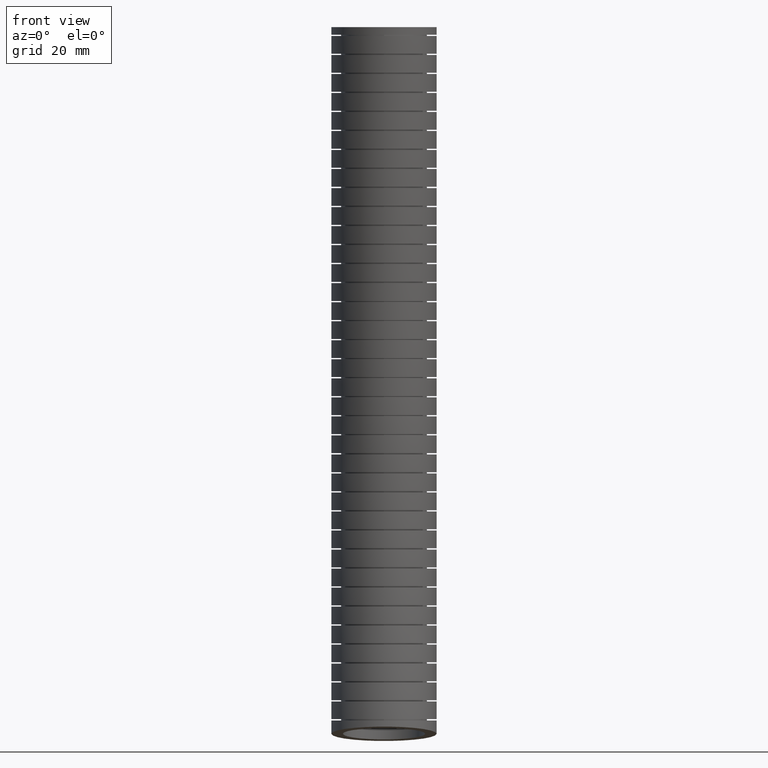
[diagram: clean part render]
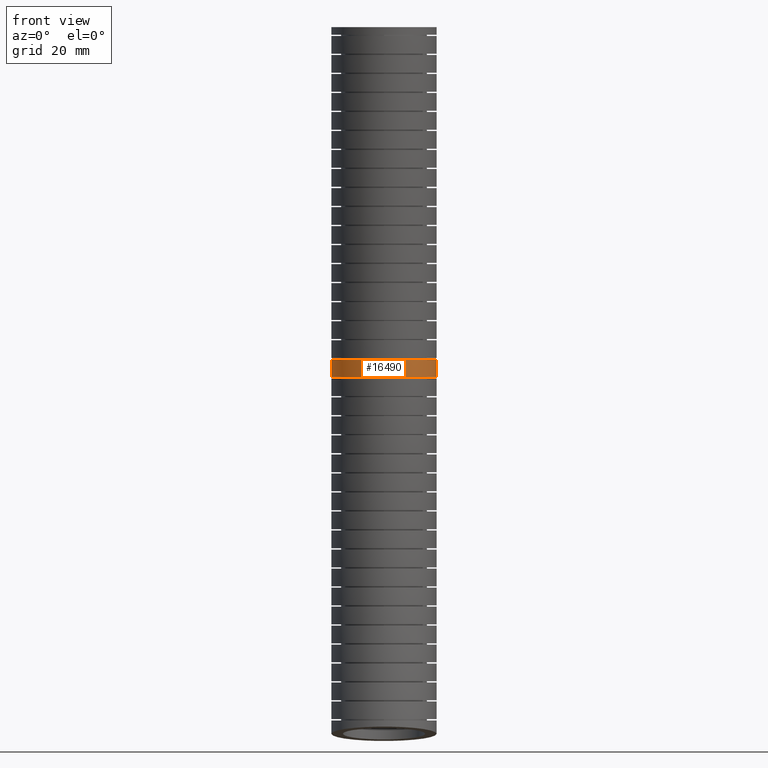
[diagram: same view with one face highlighted and labeled with its STEP entity id]
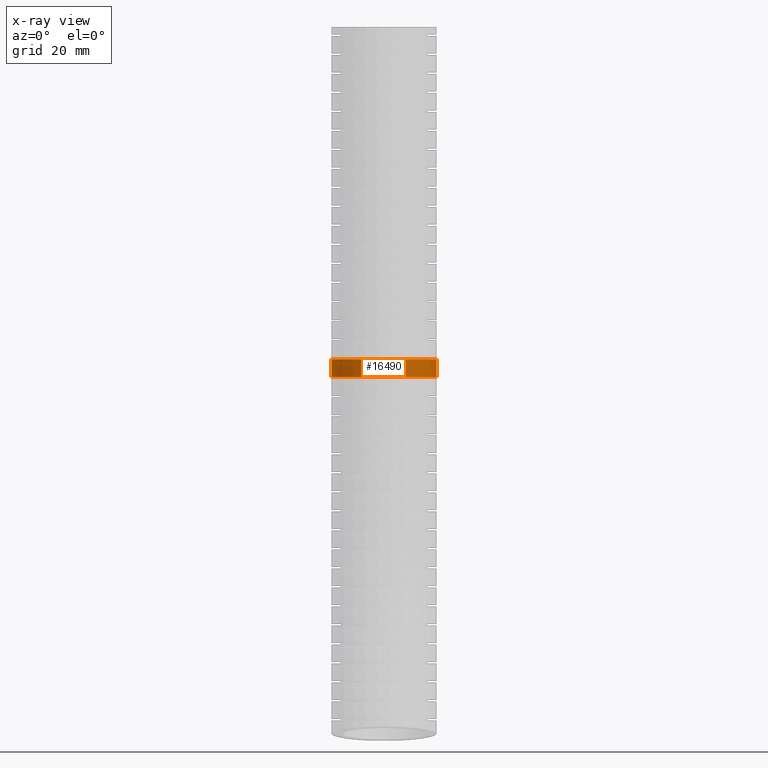
[diagram: x-ray of the same camera — body ghosted, the highlighted face saturated]
A machine part, front view. The second image highlights one B-rep face of the part: STEP entity #16490.
The next image is the same camera in x-ray: the body ghosted, the highlighted face saturated — about 0% of this face is hidden behind the body in this view.
In plain terms, the highlighted face is a freeform B-spline surface patch.
Its self-contained STEP definition (entity closure, byte-faithful):
#3568 = CARTESIAN_POINT ( 'NONE',  ( 0.3601688368391189900, -0.1194407579351454300, -2.618444686257095400 ) ) ;
#3570 = CARTESIAN_POINT ( 'NONE',  ( 0.3729247891442401500, -0.09561640822386305300, -2.618444686257095800 ) ) ;
#3571 = CARTESIAN_POINT ( 'NONE',  ( 0.3885592072056641100, -0.05794052314210737500, -2.618444686257097600 ) ) ;
#3709 = B_SPLINE_CURVE_WITH_KNOTS ( 'NONE', 3,
 ( #3726, #3725, #3724, #3723 ),
 .UNSPECIFIED., .F., .F.,
 ( 4, 4 ),
 ( 0.4693296114565723700, 0.4944473827982828200 ),
 .UNSPECIFIED. ) ;
#3710 = CARTESIAN_POINT ( 'NONE',  ( -0.4150000000000000900, 0.08968345054271666100, -2.758437796094407500 ) ) ;
#3711 = CARTESIAN_POINT ( 'NONE',  ( 0.4150000000000000900, 0.08968345053978009400, -2.758437795902524100 ) ) ;
#3723 = CARTESIAN_POINT ( 'NONE',  ( 0.4150000000000000900, 0.08968345053978009400, -2.758437795902524100 ) ) ;
#3724 = CARTESIAN_POINT ( 'NONE',  ( 0.4150000000000000400, 0.08932641115617297200, -2.711777060696217000 ) ) ;
#3725 = CARTESIAN_POINT ( 'NONE',  ( 0.4150000000000000400, 0.08888085908836913800, -2.665112628142432000 ) ) ;
#3726 = CARTESIAN_POINT ( 'NONE',  ( 0.4150000000000000900, 0.08835129075206960000, -2.618444686065264400 ) ) ;
#3740 = CARTESIAN_POINT ( 'NONE',  ( -0.1836578986645913700, -0.2831459562742090800, -2.758437796094408000 ) ) ;
#3741 = CARTESIAN_POINT ( 'NONE',  ( -0.2080285866802455700, -0.2701408848866131400, -2.758437796094406600 ) ) ;
#3742 = CARTESIAN_POINT ( 'NONE',  ( -0.2531033597253879400, -0.2400469451076659700, -2.758437796094408000 ) ) ;
#3743 = CARTESIAN_POINT ( 'NONE',  ( -0.2740103408833247700, -0.2229277358624604200, -2.758437796094408000 ) ) ;
#3744 = CARTESIAN_POINT ( 'NONE',  ( -0.3028952075132629300, -0.1941024368056295500, -2.758437796094407500 ) ) ;
#3745 = CARTESIAN_POINT ( 'NONE',  ( -0.3121429971595960400, -0.1839149737702739900, -2.758437796094407500 ) ) ;
#3746 = CARTESIAN_POINT ( 'NONE',  ( -0.3294176012613525600, -0.1628861385754488400, -2.758437796094407500 ) ) ;
#3747 = CARTESIAN_POINT ( 'NONE',  ( -0.3374872869322752000, -0.1520102725692707200, -2.758437796094405800 ) ) ;
#3748 = CARTESIAN_POINT ( 'NONE',  ( -0.3600287130539248600, -0.1183207557032729300, -2.758437796094406200 ) ) ;
#3749 = CARTESIAN_POINT ( 'NONE',  ( -0.3728668706419741600, -0.09441323788760044900, -2.758437796094408000 ) ) ;
#3750 = CARTESIAN_POINT ( 'NONE',  ( -0.3938541191073686700, -0.04383112582198386100, -2.758437796094408400 ) ) ;
#3751 = CARTESIAN_POINT ( 'NONE',  ( -0.4016961210579685400, -0.01791990375877386400, -2.758437796094408900 ) ) ;
#3752 = CARTESIAN_POINT ( 'NONE',  ( -0.4096317179589165100, 0.02184208971286200100, -2.758437796094408900 ) ) ;
#3753 = CARTESIAN_POINT ( 'NONE',  ( -0.4116343068152905100, 0.03524638230688231100, -2.758437796094410200 ) ) ;
#3754 = CARTESIAN_POINT ( 'NONE',  ( -0.4143227333589243300, 0.06236293154813406900, -2.758437796094409800 ) ) ;
#3755 = CARTESIAN_POINT ( 'NONE',  ( -0.4150000000000000900, 0.07609679407364426700, -2.758437796094407500 ) ) ;
#3756 = CARTESIAN_POINT ( 'NONE',  ( -0.4150000000000000900, 0.08968345054271666100, -2.758437796094407500 ) ) ;
#3757 = CARTESIAN_POINT ( 'NONE',  ( 0.4150000000000000900, 0.08835129075206960000, -2.618444686065264400 ) ) ;
#3758 = B_SPLINE_CURVE_WITH_KNOTS ( 'NONE', 3,
 ( #3756, #3755, #3754, #3753, #3752, #3751, #3750, #3749, #3748, #3747, #3746, #3745, #3744, #3743, #3742, #3741, #3740, #3811, #3810, #3809, #3808, #3807, #3806, #3805, #3804, #3803, #3802, #3801, #3800, #3799, #3798, #3797, #3796, #3795, #3794, #3793, #3792, #3791, #3790, #3789, #3788, #3786, #3785, #3784, #3783, #3782, #3781, #3780 ),
 .UNSPECIFIED., .F., .F.,
 ( 4, 2, 2, 2, 2, 2, 2, 2, 2, 2, 2, 1, 2, 2, 2, 2, 2, 2, 2, 2, 2, 2, 1, 2, 4 ),
 ( 0.03329562221631519900, 0.03433615321280619700, 0.03537668420929719600, 0.03745774620227920000, 0.03953880819526119800, 0.04057933919175219600, 0.04161987018824320200, 0.04370093218122519900, 0.04578199417420720400, 0.04786305616718920100, 0.04890358716368020700, 0.04994411816017120500, 0.05098464915666220400, 0.05202518015315320300, 0.05410624214613520000, 0.05514677314262619900, 0.05618730413911719700, 0.05826836613209920900, 0.05930889712859020700, 0.06034942812508120600, 0.06243049011806320300, 0.06347102111455420200, 0.06451155211104520100, 0.06555208310753621300, 0.06659261410402721200 ),
 .UNSPECIFIED. ) ;
#3759 = CARTESIAN_POINT ( 'NONE',  ( -0.4150000000000000900, 0.08835129075642331200, -2.618444686257095800 ) ) ;
#3764 = CARTESIAN_POINT ( 'NONE',  ( -0.4150000000000000900, 0.08968345054271666100, -2.758437796094407500 ) ) ;
#3765 = CARTESIAN_POINT ( 'NONE',  ( -0.4150000000000000900, 0.08932641115788386700, -2.711777060888098700 ) ) ;
#3766 = CARTESIAN_POINT ( 'NONE',  ( -0.4150000000000000900, 0.08888085909031627500, -2.665112628334301200 ) ) ;
#3767 = CARTESIAN_POINT ( 'NONE',  ( -0.4150000000000000900, 0.08835129075642331200, -2.618444686257095800 ) ) ;
#3770 = B_SPLINE_CURVE_WITH_KNOTS ( 'NONE', 3,
 ( #3767, #3766, #3765, #3764 ),
 .UNSPECIFIED., .F., .F.,
 ( 4, 4 ),
 ( 0.4693296114909928900, 0.4944473828327154400 ),
 .UNSPECIFIED. ) ;
#3772 = CARTESIAN_POINT ( 'NONE',  ( 0.3931997750061938000, -0.04498765426720918000, -2.618444686257096700 ) ) ;
#3773 = CARTESIAN_POINT ( 'NONE',  ( 0.4011063865392967000, -0.01892393673201044800, -2.618444686257096700 ) ) ;
#3774 = CARTESIAN_POINT ( 'NONE',  ( 0.4043944211845930100, -0.005778765187284149900, -2.618444686257096300 ) ) ;
#3775 = CARTESIAN_POINT ( 'NONE',  ( 0.4123072530145108800, 0.03398910125684666300, -2.618444686257097600 ) ) ;
#3776 = CARTESIAN_POINT ( 'NONE',  ( 0.4150000000000001500, 0.06094087398124278100, -2.618444686065264400 ) ) ;
#3777 = CARTESIAN_POINT ( 'NONE',  ( 0.4150000000000000900, 0.08835129075206960000, -2.618444686065264400 ) ) ;
#3778 = B_SPLINE_CURVE_WITH_KNOTS ( 'NONE', 3,
 ( #3777, #3776, #3775, #3774, #3773, #3772, #3571, #3570, #3568, #3852, #3851, #3850, #3849, #3848, #3847, #3846, #3845, #3844, #3843, #3842, #3841, #3840, #3839, #3838, #3837, #3836, #3835, #3834, #3833, #3832, #3831, #3830, #3829, #3828, #3827, #3826, #3825, #3824, #3823, #3822, #3821, #3820, #3819, #3818, #3817, #3816, #3815 ),
 .UNSPECIFIED., .F., .F.,
 ( 4, 2, 2, 2, 2, 2, 2, 2, 2, 1, 2, 2, 2, 2, 2, 2, 2, 2, 2, 2, 2, 2, 2, 4 ),
 ( 0.0000000000000000000, 0.002059020325271534000, 0.003088530487907301300, 0.004118040650543068100, 0.006177060975814600800, 0.007206571138450366800, 0.008236081301086131000, 0.01029510162635766600, 0.01132461178899343100, 0.01235412195162919500, 0.01338363211426496200, 0.01441314227690072700, 0.01647216260217225500, 0.01750167276480802200, 0.01853118292744378900, 0.02059020325271532200, 0.02161971341535108200, 0.02264922357798684900, 0.02470824390325837600, 0.02676726422852990200, 0.02779677439116566900, 0.02882628455380142900, 0.03088530487907296300, 0.03294432520434449600 ),
 .UNSPECIFIED. ) ;
#3780 = CARTESIAN_POINT ( 'NONE',  ( 0.4150000000000000900, 0.08968345053978009400, -2.758437795902524100 ) ) ;
#3781 = CARTESIAN_POINT ( 'NONE',  ( 0.4150000000000000900, 0.07598084488924568300, -2.758437795902523700 ) ) ;
#3782 = CARTESIAN_POINT ( 'NONE',  ( 0.4143156228152621900, 0.06226965711654058200, -2.758437796094405800 ) ) ;
#3783 = CARTESIAN_POINT ( 'NONE',  ( 0.4116285888042686700, 0.03521036602161239900, -2.758437796094407500 ) ) ;
#3784 = CARTESIAN_POINT ( 'NONE',  ( 0.4076280543686335900, 0.008435164013076389100, -2.758437796094405800 ) ) ;
#3785 = CARTESIAN_POINT ( 'NONE',  ( 0.4010505005118978900, -0.01778267000438736900, -2.758437796094408000 ) ) ;
#3786 = CARTESIAN_POINT ( 'NONE',  ( 0.3931719474316903700, -0.04371911874487751500, -2.758437796094408000 ) ) ;
#3788 = CARTESIAN_POINT ( 'NONE',  ( 0.3885646856981513400, -0.05658836245891620700, -2.758437796094405300 ) ) ;
#3789 = CARTESIAN_POINT ( 'NONE',  ( 0.3728316291329519200, -0.09448009999208716000, -2.758437796094405300 ) ) ;
#3790 = CARTESIAN_POINT ( 'NONE',  ( 0.3600295469707631100, -0.1183209596565601800, -2.758437796094408400 ) ) ;
#3791 = CARTESIAN_POINT ( 'NONE',  ( 0.3374765501502033900, -0.1520255936918134800, -2.758437796094408000 ) ) ;
#3792 = CARTESIAN_POINT ( 'NONE',  ( 0.3293964822219476700, -0.1629151847011872100, -2.758437796094408400 ) ) ;
#3793 = CARTESIAN_POINT ( 'NONE',  ( 0.3120821192965400600, -0.1839857288115895300, -2.758437796094408000 ) ) ;
#3794 = CARTESIAN_POINT ( 'NONE',  ( 0.3028444483306791400, -0.1941553387756662900, -2.758437796094407500 ) ) ;
#3795 = CARTESIAN_POINT ( 'NONE',  ( 0.2740084594785628400, -0.2229251063461845100, -2.758437796094407500 ) ) ;
#3796 = CARTESIAN_POINT ( 'NONE',  ( 0.2531098875793130200, -0.2400449132465417900, -2.758437796094405800 ) ) ;
#3797 = CARTESIAN_POINT ( 'NONE',  ( 0.2192570777710780000, -0.2626430755952868200, -2.758437796094406200 ) ) ;
#3798 = CARTESIAN_POINT ( 'NONE',  ( 0.2074890398018134400, -0.2696909603968280500, -2.758437796094407500 ) ) ;
#3799 = CARTESIAN_POINT ( 'NONE',  ( 0.1833998767866464000, -0.2825405742694792100, -2.758437796094408000 ) ) ;
#3800 = CARTESIAN_POINT ( 'NONE',  ( 0.1711257164696947100, -0.2883265821650019500, -2.758437796094408000 ) ) ;
#3801 = CARTESIAN_POINT ( 'NONE',  ( 0.1336338799255324400, -0.3038221355646285600, -2.758437796094408000 ) ) ;
#3802 = CARTESIAN_POINT ( 'NONE',  ( 0.1077532577409118400, -0.3116870454821003600, -2.758437796094406200 ) ) ;
#3803 = CARTESIAN_POINT ( 'NONE',  ( 0.06756305731837576600, -0.3196744483604151400, -2.758437796094405800 ) ) ;
#3804 = CARTESIAN_POINT ( 'NONE',  ( 0.05400644154232360500, -0.3216760451210293700, -2.758437796094407500 ) ) ;
#3805 = CARTESIAN_POINT ( 'NONE',  ( 0.02701005994535042200, -0.3243216087156292600, -2.758437796094406600 ) ) ;
#3806 = CARTESIAN_POINT ( 'NONE',  ( 3.485198351589456700E-006, -0.3256363305368494300, -2.758437796094408900 ) ) ;
#3807 = CARTESIAN_POINT ( 'NONE',  ( -0.02702323035237280300, -0.3243214213929225300, -2.758437796094406200 ) ) ;
#3808 = CARTESIAN_POINT ( 'NONE',  ( -0.05406018499378499600, -0.3216696723543349700, -2.758437796094407500 ) ) ;
#3809 = CARTESIAN_POINT ( 'NONE',  ( -0.06765848675609791000, -0.3196577169838923900, -2.758437796094410200 ) ) ;
#3810 = CARTESIAN_POINT ( 'NONE',  ( -0.1077593709516648100, -0.3116813454886271400, -2.758437796094410200 ) ) ;
#3811 = CARTESIAN_POINT ( 'NONE',  ( -0.1336255817038260200, -0.3038265804248414000, -2.758437796094408400 ) ) ;
#3815 = CARTESIAN_POINT ( 'NONE',  ( -0.4150000000000000900, 0.08835129075642331200, -2.618444686257095800 ) ) ;
#3816 = CARTESIAN_POINT ( 'NONE',  ( -0.4150000000000002000, 0.06127551581866196000, -2.618444686257096300 ) ) ;
#3817 = CARTESIAN_POINT ( 'NONE',  ( -0.4122839488728202200, 0.03377845449430930100, -2.618444686257095400 ) ) ;
#3818 = CARTESIAN_POINT ( 'NONE',  ( -0.4016704249467309400, -0.01937437333559173200, -2.618444686257095800 ) ) ;
#3819 = CARTESIAN_POINT ( 'NONE',  ( -0.3938215357462744900, -0.04523620891188358900, -2.618444686257094000 ) ) ;
#3820 = CARTESIAN_POINT ( 'NONE',  ( -0.3781882607817374500, -0.08294395350744839000, -2.618444686257095400 ) ) ;
#3821 = CARTESIAN_POINT ( 'NONE',  ( -0.3722964327869885400, -0.09538072624037426100, -2.618444686257095800 ) ) ;
#3822 = CARTESIAN_POINT ( 'NONE',  ( -0.3594442724588313200, -0.1193706073191723700, -2.618444686257095800 ) ) ;
#3823 = CARTESIAN_POINT ( 'NONE',  ( -0.3524670884886890700, -0.1309790413119871200, -2.618444686257096300 ) ) ;
#3824 = CARTESIAN_POINT ( 'NONE',  ( -0.3299166674994171200, -0.1646689791536790300, -2.618444686257095800 ) ) ;
#3825 = CARTESIAN_POINT ( 'NONE',  ( -0.3127039743349668300, -0.1856627473458008200, -2.618444686257096700 ) ) ;
#3826 = CARTESIAN_POINT ( 'NONE',  ( -0.2739471864243971400, -0.2243585881685731300, -2.618444686257098500 ) ) ;
#3827 = CARTESIAN_POINT ( 'NONE',  ( -0.2529843475377426300, -0.2414945253582161100, -2.618444686257095800 ) ) ;
#3828 = CARTESIAN_POINT ( 'NONE',  ( -0.2192539446977089800, -0.2640068318648534600, -2.618444686257095400 ) ) ;
#3829 = CARTESIAN_POINT ( 'NONE',  ( -0.2076266395503901000, -0.2709750730718163400, -2.618444686257096300 ) ) ;
#3830 = CARTESIAN_POINT ( 'NONE',  ( -0.1835856951761295500, -0.2838137844263806100, -2.618444686257097600 ) ) ;
#3831 = CARTESIAN_POINT ( 'NONE',  ( -0.1711488681753411700, -0.2896845905860528900, -2.618444686257096700 ) ) ;
#3832 = CARTESIAN_POINT ( 'NONE',  ( -0.1334713773223910900, -0.3052538558976372100, -2.618444686257096300 ) ) ;
#3833 = CARTESIAN_POINT ( 'NONE',  ( -0.1076078462651003000, -0.3130812137690760500, -2.618444686257094000 ) ) ;
#3834 = CARTESIAN_POINT ( 'NONE',  ( -0.06770156726152475000, -0.3210173903634151400, -2.618444686257094900 ) ) ;
#3835 = CARTESIAN_POINT ( 'NONE',  ( -0.05415293158051556800, -0.3230293984625293200, -2.618444686257095800 ) ) ;
#3836 = CARTESIAN_POINT ( 'NONE',  ( -0.02695130426957577000, -0.3256982365864014000, -2.618444686257097600 ) ) ;
#3837 = CARTESIAN_POINT ( 'NONE',  ( -0.01338670622812355300, -0.3263530202955173800, -2.618444686257096700 ) ) ;
#3838 = CARTESIAN_POINT ( 'NONE',  ( 0.02720167042688499700, -0.3263390689443188600, -2.618444686257096700 ) ) ;
#3839 = CARTESIAN_POINT ( 'NONE',  ( 0.05412103481151298700, -0.3237108585791785300, -2.618444686257096700 ) ) ;
#3840 = CARTESIAN_POINT ( 'NONE',  ( 0.09428511138527820300, -0.3157343379539783200, -2.618444686257095800 ) ) ;
#3841 = CARTESIAN_POINT ( 'NONE',  ( 0.1075993952125398900, -0.3123968957740655400, -2.618444686257098000 ) ) ;
#3842 = CARTESIAN_POINT ( 'NONE',  ( 0.1335756583859703300, -0.3045143805261402700, -2.618444686257098500 ) ) ;
#3843 = CARTESIAN_POINT ( 'NONE',  ( 0.1590442595585257700, -0.2953983278080316000, -2.618444686257094900 ) ) ;
#3844 = CARTESIAN_POINT ( 'NONE',  ( 0.1835112967809604800, -0.2838486348743355900, -2.618444686257095400 ) ) ;
#3845 = CARTESIAN_POINT ( 'NONE',  ( 0.2074699279845209900, -0.2710635966257061200, -2.618444686257096300 ) ) ;
#3846 = CARTESIAN_POINT ( 'NONE',  ( 0.2192575505248629000, -0.2640093736155709700, -2.618444686257098000 ) ) ;
#3847 = CARTESIAN_POINT ( 'NONE',  ( 0.2532909962653154300, -0.2412798967617472100, -2.618444686257096700 ) ) ;
#3848 = CARTESIAN_POINT ( 'NONE',  ( 0.2741907227803933000, -0.2241177057704212500, -2.618444686257096700 ) ) ;
#3849 = CARTESIAN_POINT ( 'NONE',  ( 0.3029191673864477000, -0.1954310301270901800, -2.618444686257096700 ) ) ;
#3850 = CARTESIAN_POINT ( 'NONE',  ( 0.3120553334528148900, -0.1853747313055907100, -2.618444686257096700 ) ) ;
#3851 = CARTESIAN_POINT ( 'NONE',  ( 0.3294193572704723900, -0.1642421577836074000, -2.618444686257096700 ) ) ;
#3852 = CARTESIAN_POINT ( 'NONE',  ( 0.3375669236953207100, -0.1532553929218904700, -2.618444686257096300 ) ) ;
#3922 = FACE_OUTER_BOUND ( 'NONE', #16485, .T. ) ;
#3926 = CARTESIAN_POINT ( 'NONE',  ( -0.4150000000000000900, -0.7627651118616902700, -4.486822042548080700 ) ) ;
#3927 = CARTESIAN_POINT ( 'NONE',  ( -0.4150000000000000400, -0.7092540105308221500, -2.690209918970475100 ) ) ;
#3928 = CARTESIAN_POINT ( 'NONE',  ( -0.4150000000000000900, -0.7836011148550242600, -1.033763039210906500 ) ) ;
#3929 = CARTESIAN_POINT ( 'NONE',  ( -0.4150000000000000900, -0.8300000000000001800, 0.0000000000000000000 ) ) ;
#3930 = CARTESIAN_POINT ( 'NONE',  ( 0.4150000000000000400, -0.8522141346493592500, -5.456580791826050700 ) ) ;
#3931 = CARTESIAN_POINT ( 'NONE',  ( 0.4150000000000002000, -0.8352887892759974800, -5.273085195688222100 ) ) ;
#3932 = CARTESIAN_POINT ( 'NONE',  ( 0.4150000000000000400, -0.7627651118616902700, -4.486822042548080700 ) ) ;
#3933 = CARTESIAN_POINT ( 'NONE',  ( 0.4150000000000000400, -0.7092540105308221500, -2.690209918970475100 ) ) ;
#3934 = CARTESIAN_POINT ( 'NONE',  ( 0.4150000000000000900, -0.7836011148550242600, -1.033763039210906500 ) ) ;
#3935 = CARTESIAN_POINT ( 'NONE',  ( 0.4150000000000000900, -0.8300000000000001800, 0.0000000000000000000 ) ) ;
#3936 = CARTESIAN_POINT ( 'NONE',  ( 0.4150000000000000400, -0.03000000000000001600, -5.569999999999998500 ) ) ;
#3937 = CARTESIAN_POINT ( 'NONE',  ( 0.4150000000000000900, -0.01243844818931303500, -5.380037381098891700 ) ) ;
#3938 = CARTESIAN_POINT ( 'NONE',  ( 0.4150000000000000900, 0.06281132015026588700, -4.566063580857106200 ) ) ;
#3939 = CARTESIAN_POINT ( 'NONE',  ( 0.4149999999999999200, 0.1218071073635319700, -2.711443563840852700 ) ) ;
#3940 = CARTESIAN_POINT ( 'NONE',  ( 0.4150000000000000900, 0.04680663936954134600, -1.041922460934817000 ) ) ;
#3941 = CARTESIAN_POINT ( 'NONE',  ( 0.4150000000000000900, 0.0000000000000000000, 0.0000000000000000000 ) ) ;
#3945 =( BOUNDED_SURFACE ( )  B_SPLINE_SURFACE ( 3, 3, ( 
 ( #3941, #3940, #3939, #3938, #3937, #3936 ),
 ( #3935, #3934, #3933, #3932, #3931, #3930 ),
 ( #3929, #3928, #3927, #3926, #3984, #3983 ),
 ( #3982, #3981, #3980, #3979, #3978, #3977 ),
 ( #3976, #3975, #3974, #3973, #3972, #3971 ),
 ( #3970, #3969, #3968, #3967, #3966, #3965 ),
 ( #3963, #3962, #3961, #3960, #3959, #3958 ) ),
 .UNSPECIFIED., .F., .F., .F. ) 
 B_SPLINE_SURFACE_WITH_KNOTS ( ( 4, 3, 4 ),
 ( 4, 1, 1, 4 ),
 ( 0.0000000000000000000, 0.5000000000000000000, 1.000000000000000000 ),
 ( 0.0000000000000000000, 0.5600000000000000500, 0.8973141982067990300, 1.000000000000000000 ),
 .UNSPECIFIED. ) 
 GEOMETRIC_REPRESENTATION_ITEM ( )  RATIONAL_B_SPLINE_SURFACE ( (
 ( 1.000000000000000000, 1.000000000000000000, 1.000000000000000000, 1.000000000000000000, 1.000000000000000000, 1.000000000000000000),
 ( 0.3333333333333333100, 0.3333333333333333100, 0.3333333333333333100, 0.3333333333333333100, 0.3333333333333332600, 0.3333333333333333100),
 ( 0.3333333333333333100, 0.3333333333333333100, 0.3333333333333333100, 0.3333333333333333100, 0.3333333333333332600, 0.3333333333333333100),
 ( 1.000000000000000000, 1.000000000000000000, 1.000000000000000000, 1.000000000000000000, 1.000000000000000000, 1.000000000000000000),
 ( 0.3333333333333333100, 0.3333333333333333100, 0.3333333333333333100, 0.3333333333333333100, 0.3333333333333332600, 0.3333333333333333100),
 ( 0.3333333333333333100, 0.3333333333333333100, 0.3333333333333333100, 0.3333333333333333100, 0.3333333333333332600, 0.3333333333333333100),
 ( 1.000000000000000000, 1.000000000000000000, 1.000000000000000000, 1.000000000000000000, 1.000000000000000000, 1.000000000000000000) ) ) 
 REPRESENTATION_ITEM ( '' )  SURFACE ( )  );
#3958 = CARTESIAN_POINT ( 'NONE',  ( 0.4150000000000000400, -0.03000000000000001600, -5.569999999999998500 ) ) ;
#3959 = CARTESIAN_POINT ( 'NONE',  ( 0.4150000000000000900, -0.01243844818931303500, -5.380037381098891700 ) ) ;
#3960 = CARTESIAN_POINT ( 'NONE',  ( 0.4150000000000000900, 0.06281132015026588700, -4.566063580857106200 ) ) ;
#3961 = CARTESIAN_POINT ( 'NONE',  ( 0.4149999999999999200, 0.1218071073635319700, -2.711443563840852700 ) ) ;
#3962 = CARTESIAN_POINT ( 'NONE',  ( 0.4150000000000000900, 0.04680663936954134600, -1.041922460934817000 ) ) ;
#3963 = CARTESIAN_POINT ( 'NONE',  ( 0.4150000000000000900, 0.0000000000000000000, 0.0000000000000000000 ) ) ;
#3965 = CARTESIAN_POINT ( 'NONE',  ( 0.4150000000000000400, 0.7922141346493595200, -5.683419208173947200 ) ) ;
#3966 = CARTESIAN_POINT ( 'NONE',  ( 0.4150000000000002000, 0.8104118928973711400, -5.486989566509566700 ) ) ;
#3967 = CARTESIAN_POINT ( 'NONE',  ( 0.4150000000000000400, 0.8883877521622221000, -4.645305119166129900 ) ) ;
#3968 = CARTESIAN_POINT ( 'NONE',  ( 0.4150000000000000400, 0.9528682252578860600, -2.732677208711230800 ) ) ;
#3969 = CARTESIAN_POINT ( 'NONE',  ( 0.4150000000000000900, 0.8772143935941071300, -1.050081882658727000 ) ) ;
#3970 = CARTESIAN_POINT ( 'NONE',  ( 0.4150000000000000900, 0.8300000000000001800, 0.0000000000000000000 ) ) ;
#3971 = CARTESIAN_POINT ( 'NONE',  ( -0.4149999999999999200, 0.7922141346493595200, -5.683419208173947200 ) ) ;
#3972 = CARTESIAN_POINT ( 'NONE',  ( -0.4150000000000000400, 0.8104118928973711400, -5.486989566509566700 ) ) ;
#3973 = CARTESIAN_POINT ( 'NONE',  ( -0.4149999999999999200, 0.8883877521622221000, -4.645305119166129900 ) ) ;
#3974 = CARTESIAN_POINT ( 'NONE',  ( -0.4149999999999999200, 0.9528682252578860600, -2.732677208711230800 ) ) ;
#3975 = CARTESIAN_POINT ( 'NONE',  ( -0.4149999999999999200, 0.8772143935941071300, -1.050081882658727000 ) ) ;
#3976 = CARTESIAN_POINT ( 'NONE',  ( -0.4150000000000000400, 0.8300000000000001800, 0.0000000000000000000 ) ) ;
#3977 = CARTESIAN_POINT ( 'NONE',  ( -0.4150000000000000400, -0.02999999999999996800, -5.569999999999998500 ) ) ;
#3978 = CARTESIAN_POINT ( 'NONE',  ( -0.4150000000000000900, -0.01243844818931298000, -5.380037381098891700 ) ) ;
#3979 = CARTESIAN_POINT ( 'NONE',  ( -0.4150000000000000900, 0.06281132015026594200, -4.566063580857106200 ) ) ;
#3980 = CARTESIAN_POINT ( 'NONE',  ( -0.4149999999999999200, 0.1218071073635320100, -2.711443563840852700 ) ) ;
#3981 = CARTESIAN_POINT ( 'NONE',  ( -0.4150000000000000900, 0.04680663936954139500, -1.041922460934817000 ) ) ;
#3982 = CARTESIAN_POINT ( 'NONE',  ( -0.4150000000000000900, 5.082284216461516900E-017, 0.0000000000000000000 ) ) ;
#3983 = CARTESIAN_POINT ( 'NONE',  ( -0.4150000000000000900, -0.8522141346493592500, -5.456580791826050700 ) ) ;
#3984 = CARTESIAN_POINT ( 'NONE',  ( -0.4150000000000002000, -0.8352887892759974800, -5.273085195688222100 ) ) ;
#16462 = EDGE_CURVE ( 'NONE', #16480, #16469, #3709, .T. ) ;
#16467 = ORIENTED_EDGE ( 'NONE', *, *, #16462, .F. ) ;
#16469 = VERTEX_POINT ( 'NONE', #3711 ) ;
#16470 = ORIENTED_EDGE ( 'NONE', *, *, #16475, .T. ) ;
#16471 = VERTEX_POINT ( 'NONE', #3710 ) ;
#16473 = EDGE_CURVE ( 'NONE', #16479, #16471, #3770, .T. ) ;
#16475 = EDGE_CURVE ( 'NONE', #16471, #16469, #3758, .T. ) ;
#16476 = ORIENTED_EDGE ( 'NONE', *, *, #16473, .T. ) ;
#16479 = VERTEX_POINT ( 'NONE', #3759 ) ;
#16480 = VERTEX_POINT ( 'NONE', #3757 ) ;
#16481 = EDGE_CURVE ( 'NONE', #16480, #16479, #3778, .T. ) ;
#16483 = ORIENTED_EDGE ( 'NONE', *, *, #16481, .T. ) ;
#16485 = EDGE_LOOP ( 'NONE', ( #16483, #16476, #16470, #16467 ) ) ;
#16490 = ADVANCED_FACE ( 'NONE', ( #3922 ), #3945, .T. ) ;